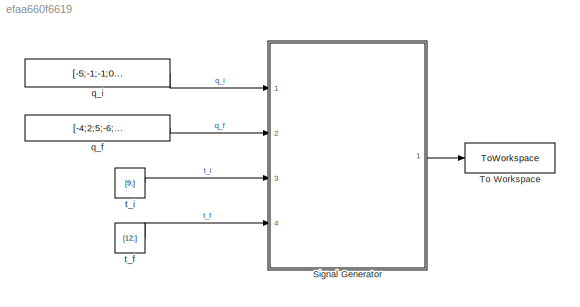
MODEL slx_efaa660f6619
KIND model
CONFIG AbsTol = auto
CONFIG EnableMultiTasking = off
CONFIG FixedStep = [0.01;]
CONFIG MaxStep = auto
CONFIG MinStep = auto
CONFIG RelTol = 1e-3
CONFIG SampleTimeConstraint = Unconstrained
CONFIG SolverName = FixedStepAuto
CONFIG StartTime = 0.0
CONFIG StopTime = [18;]
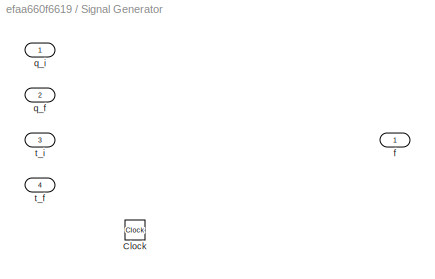
BLOCK [SubSystem] Signal Generator
  Ports = [4, 1]
  RequestExecContextInheritance = off
BLOCK [Clock] Signal Generator/Clock
BLOCK [Outport] Signal Generator/f
BLOCK [Inport] Signal Generator/q_f
  Port = 2
BLOCK [Inport] Signal Generator/q_i
BLOCK [Inport] Signal Generator/t_f
  Port = 4
BLOCK [Inport] Signal Generator/t_i
  Port = 3
BLOCK [ToWorkspace] To Workspace
  FixptAsFi = on
  MaxDataPoints = inf
  Ports = [1]
  SampleTime = -1
  SaveFormat = Timeseries
  VariableName = simout
BLOCK [Constant] q_f
  Value = [-4;2;5;-6;4;-10;6;-8;6;]
BLOCK [Constant] q_i
  Value = [-5;-1;-1;0;1;3;3;4;6;]
BLOCK [Constant] t_f
  Value = [12;]
BLOCK [Constant] t_i
  Value = [9;]
LINE Signal Generator:1 -> To Workspace:1
LINE q_f:1 -> Signal Generator:2
LINE q_i:1 -> Signal Generator:1
LINE t_f:1 -> Signal Generator:4
LINE t_i:1 -> Signal Generator:3
